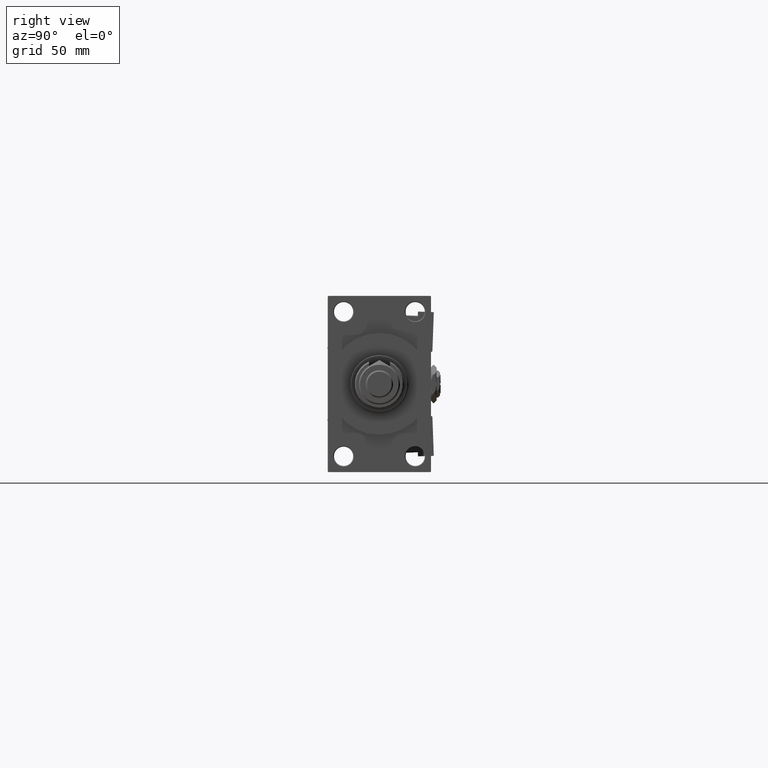
[diagram: clean part render]
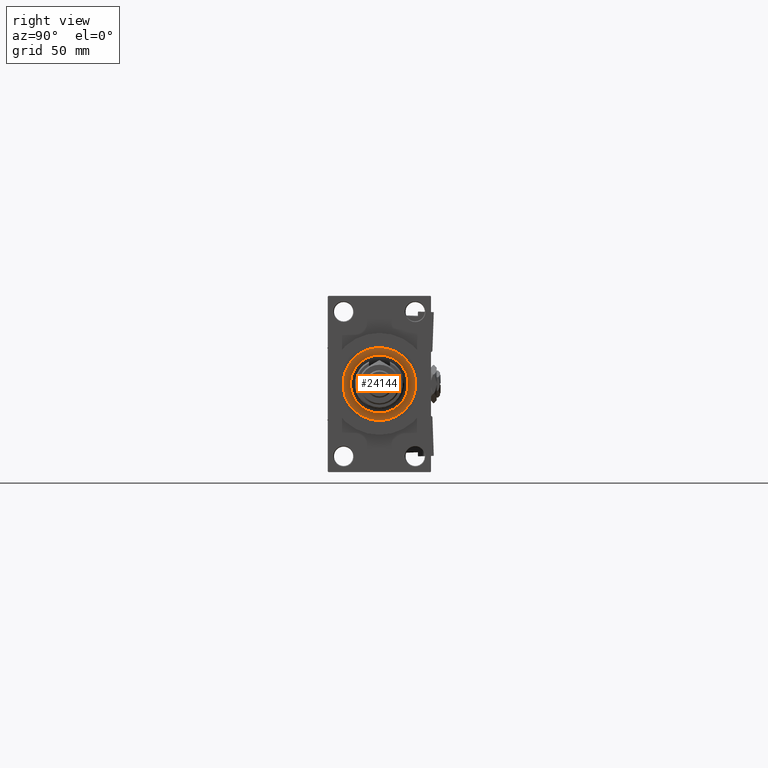
[diagram: same view with one face highlighted and labeled with its STEP entity id]
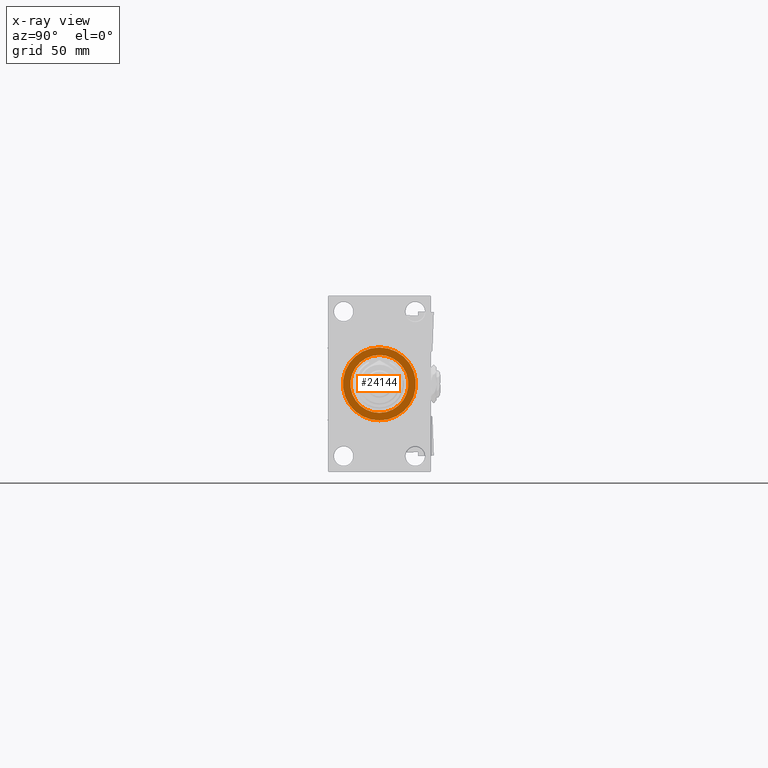
[diagram: x-ray of the same camera — body ghosted, the highlighted face saturated]
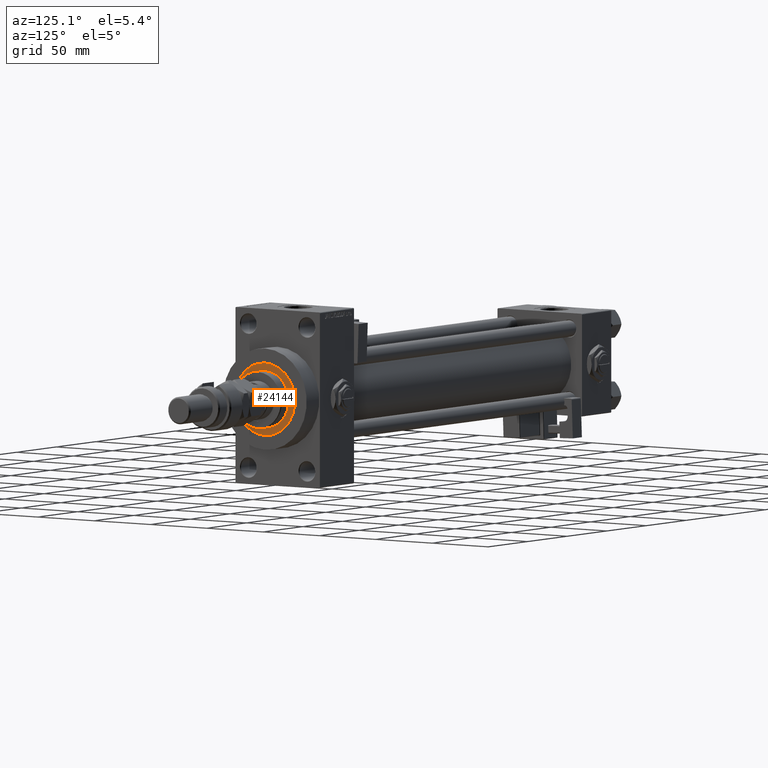
[diagram: same view with one face highlighted and labeled with its STEP entity id]
A machine part, right view. The second image highlights one B-rep face of the part: STEP entity #24144.
The next image is the same camera in x-ray: the body ghosted, the highlighted face saturated — about 0% of this face is hidden behind the body in this view.
A second angle (auxiliary view) of the same face is appended — the face is thin or edge-on in the first view.
In plain terms, the highlighted planar face has unit normal (1, -0, -0).
Its self-contained STEP definition (entity closure, byte-faithful):
#789 = ORIENTED_EDGE ( 'NONE', *, *, #47599, .T. ) ;
#2186 = AXIS2_PLACEMENT_3D ( 'NONE', #3572, #28341, #50275 ) ;
#3572 = CARTESIAN_POINT ( 'NONE',  ( 0.000000000000000000, 0.000000000000000000, 43.25999999999999801 ) ) ;
#4755 = DIRECTION ( 'NONE',  ( 1.000000000000000000, 0.000000000000000000, 0.000000000000000000 ) ) ;
#4952 = EDGE_CURVE ( 'NONE', #43343, #53847, #36447, .T. ) ;
#7261 = EDGE_LOOP ( 'NONE', ( #38994, #789 ) ) ;
#9987 = DIRECTION ( 'NONE',  ( 0.000000000000000000, 0.000000000000000000, 1.000000000000000000 ) ) ;
#16788 = VERTEX_POINT ( 'NONE', #35015 ) ;
#17761 = AXIS2_PLACEMENT_3D ( 'NONE', #46811, #9987, #4755 ) ;
#17820 = CARTESIAN_POINT ( 'NONE',  ( 0.000000000000000000, 0.000000000000000000, 43.25999999999999801 ) ) ;
#20358 = AXIS2_PLACEMENT_3D ( 'NONE', #17820, #51901, #34590 ) ;
#20566 = FACE_BOUND ( 'NONE', #40668, .T. ) ;
#21240 = CIRCLE ( 'NONE', #17761, 26.50000000000000355 ) ;
#21660 = CARTESIAN_POINT ( 'NONE',  ( 0.000000000000000000, 0.000000000000000000, 43.25999999999999801 ) ) ;
#22205 = DIRECTION ( 'NONE',  ( 1.000000000000000000, 0.000000000000000000, -0.000000000000000000 ) ) ;
#24144 = ADVANCED_FACE ( 'NONE', ( #20566, #37332 ), #29899, .T. ) ;
#27232 = EDGE_CURVE ( 'NONE', #53847, #43343, #49370, .T. ) ;
#28341 = DIRECTION ( 'NONE',  ( 0.000000000000000000, 0.000000000000000000, 1.000000000000000000 ) ) ;
#29881 = CARTESIAN_POINT ( 'NONE',  ( 26.50000000000000355, 3.245314017740486554E-15, 43.25999999999999801 ) ) ;
#29899 = PLANE ( 'NONE',  #38661 ) ;
#34558 = CIRCLE ( 'NONE', #40684, 26.50000000000000355 ) ;
#34590 = DIRECTION ( 'NONE',  ( 1.000000000000000000, 0.000000000000000000, 0.000000000000000000 ) ) ;
#34864 = DIRECTION ( 'NONE',  ( 0.000000000000000000, 0.000000000000000000, 1.000000000000000000 ) ) ;
#35015 = CARTESIAN_POINT ( 'NONE',  ( -26.50000000000000355, 0.000000000000000000, 43.25999999999999801 ) ) ;
#36447 = CIRCLE ( 'NONE', #2186, 21.00000000000000000 ) ;
#36979 = CARTESIAN_POINT ( 'NONE',  ( 0.000000000000000000, 0.000000000000000000, 43.25999999999999801 ) ) ;
#37238 = DIRECTION ( 'NONE',  ( 1.000000000000000000, 0.000000000000000000, 0.000000000000000000 ) ) ;
#37332 = FACE_OUTER_BOUND ( 'NONE', #7261, .T. ) ;
#38298 = ORIENTED_EDGE ( 'NONE', *, *, #27232, .F. ) ;
#38661 = AXIS2_PLACEMENT_3D ( 'NONE', #21660, #34864, #22205 ) ;
#38994 = ORIENTED_EDGE ( 'NONE', *, *, #41508, .T. ) ;
#40668 = EDGE_LOOP ( 'NONE', ( #51248, #38298 ) ) ;
#40684 = AXIS2_PLACEMENT_3D ( 'NONE', #36979, #44980, #37238 ) ;
#41508 = EDGE_CURVE ( 'NONE', #16788, #48479, #21240, .T. ) ;
#43343 = VERTEX_POINT ( 'NONE', #43693 ) ;
#43693 = CARTESIAN_POINT ( 'NONE',  ( -21.00000000000000000, 0.000000000000000000, 43.25999999999999801 ) ) ;
#44980 = DIRECTION ( 'NONE',  ( 0.000000000000000000, 0.000000000000000000, 1.000000000000000000 ) ) ;
#46811 = CARTESIAN_POINT ( 'NONE',  ( 0.000000000000000000, 0.000000000000000000, 43.25999999999999801 ) ) ;
#47599 = EDGE_CURVE ( 'NONE', #48479, #16788, #34558, .T. ) ;
#48479 = VERTEX_POINT ( 'NONE', #29881 ) ;
#49370 = CIRCLE ( 'NONE', #20358, 21.00000000000000000 ) ;
#50275 = DIRECTION ( 'NONE',  ( 1.000000000000000000, 0.000000000000000000, 0.000000000000000000 ) ) ;
#51248 = ORIENTED_EDGE ( 'NONE', *, *, #4952, .F. ) ;
#51821 = CARTESIAN_POINT ( 'NONE',  ( 21.00000000000000000, 2.571758278209441661E-15, 43.25999999999999801 ) ) ;
#51901 = DIRECTION ( 'NONE',  ( 0.000000000000000000, 0.000000000000000000, 1.000000000000000000 ) ) ;
#53847 = VERTEX_POINT ( 'NONE', #51821 ) ;